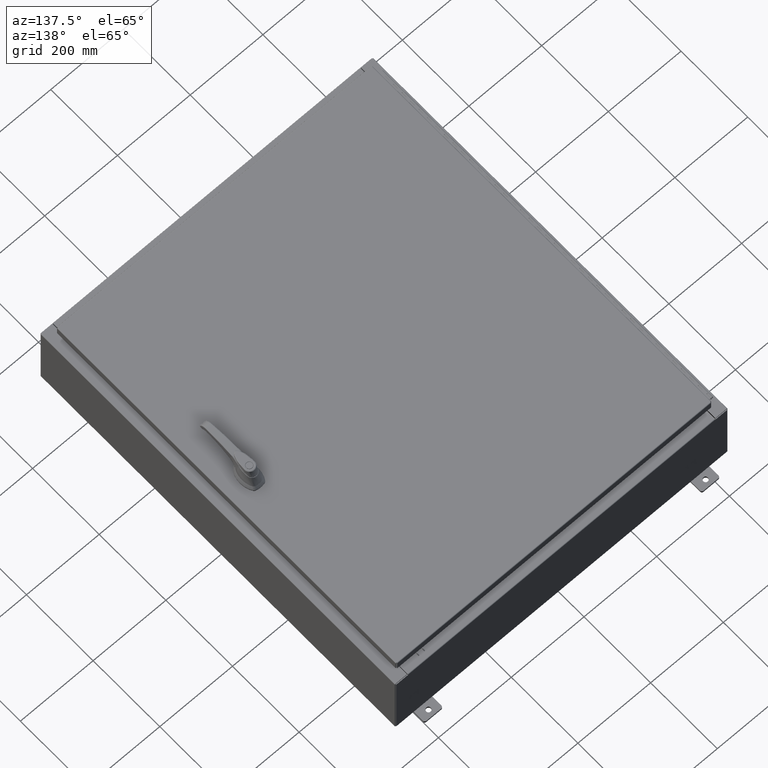
[diagram: clean part render]
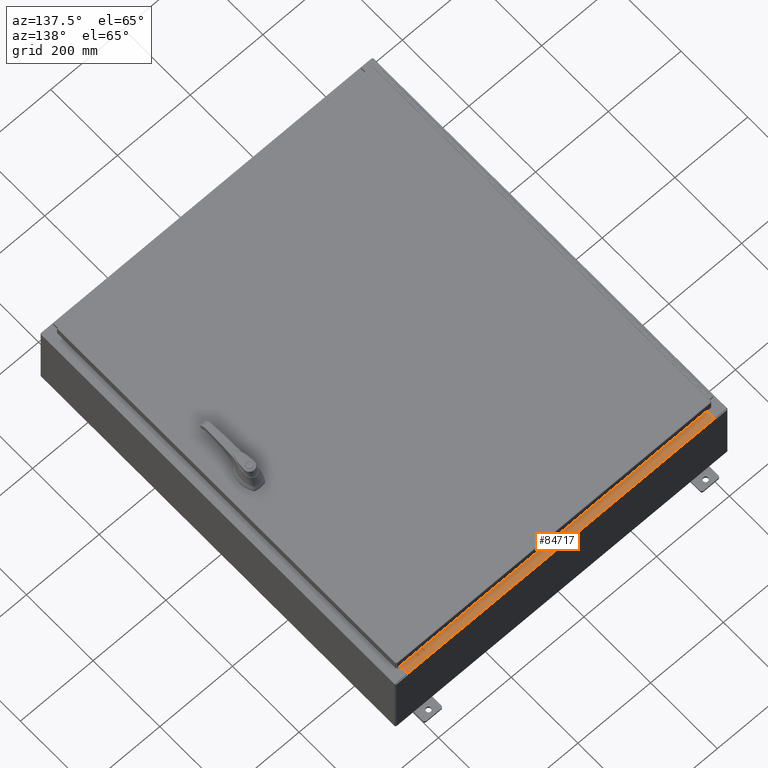
[diagram: same view with one face highlighted and labeled with its STEP entity id]
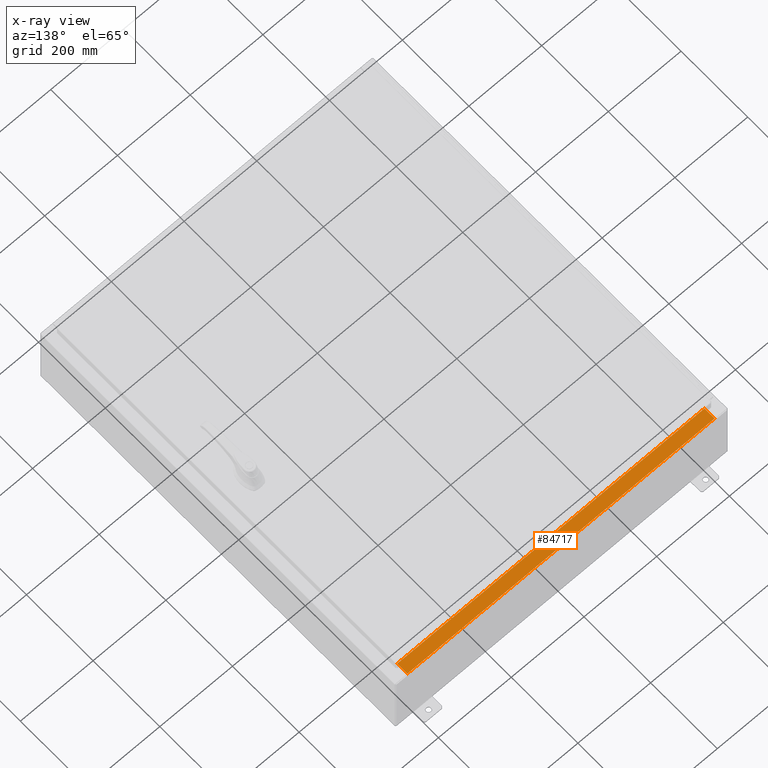
[diagram: x-ray of the same camera — body ghosted, the highlighted face saturated]
A machine part, auxiliary view. The second image highlights one B-rep face of the part: STEP entity #84717.
The next image is the same camera in x-ray: the body ghosted, the highlighted face saturated — about 0% of this face is hidden behind the body in this view.
In plain terms, the highlighted planar face has unit normal (0, 0, 1).
Its self-contained STEP definition (entity closure, byte-faithful):
#1981 = VERTEX_POINT ( 'NONE', #119838 ) ;
#6351 = ORIENTED_EDGE ( 'NONE', *, *, #32666, .T. ) ;
#8736 = LINE ( 'NONE', #27125, #58251 ) ;
#18900 = DIRECTION ( 'NONE',  ( 0.0000000000000000000, 3.566381192773190000E-015, 1.000000000000000000 ) ) ;
#18934 = DIRECTION ( 'NONE',  ( -1.000000000000000000, 3.284023746380717400E-017, -1.171208052571274300E-031 ) ) ;
#19628 = VERTEX_POINT ( 'NONE', #26980 ) ;
#22204 = CARTESIAN_POINT ( 'NONE',  ( 16.63720000000000400, -1.287299999999999900, 4.000000000000004400 ) ) ;
#22216 = CARTESIAN_POINT ( 'NONE',  ( 16.63720000000000700, -1.287299999999999900, 4.000000000000004400 ) ) ;
#26980 = CARTESIAN_POINT ( 'NONE',  ( 16.63720000000000700, -0.08769999999999937600, 4.000000000000000900 ) ) ;
#27125 = CARTESIAN_POINT ( 'NONE',  ( -16.63719999999999600, -0.07469999999999973900, 4.000000000000000900 ) ) ;
#27358 = EDGE_CURVE ( 'NONE', #64976, #1981, #8736, .T. ) ;
#31224 = ORIENTED_EDGE ( 'NONE', *, *, #94271, .F. ) ;
#31755 = DIRECTION ( 'NONE',  ( -1.000000000000000000, 0.0000000000000000000, 0.0000000000000000000 ) ) ;
#31948 = VECTOR ( 'NONE', #95549, 39.37007874015748100 ) ;
#32666 = EDGE_CURVE ( 'NONE', #19628, #1981, #63545, .T. ) ;
#35320 = ORIENTED_EDGE ( 'NONE', *, *, #27358, .F. ) ;
#37029 = DIRECTION ( 'NONE',  ( -0.0000000000000000000, 1.000000000000000000, -3.566381192773190000E-015 ) ) ;
#37651 = VECTOR ( 'NONE', #31755, 39.37007874015748100 ) ;
#44814 = VERTEX_POINT ( 'NONE', #22204 ) ;
#46023 = AXIS2_PLACEMENT_3D ( 'NONE', #98159, #18900, #58723 ) ;
#58251 = VECTOR ( 'NONE', #37029, 39.37007874015748100 ) ;
#58723 = DIRECTION ( 'NONE',  ( 0.0000000000000000000, -1.000000000000000000, 3.566381192773190000E-015 ) ) ;
#61479 = FACE_OUTER_BOUND ( 'NONE', #71434, .T. ) ;
#63545 = LINE ( 'NONE', #98191, #114991 ) ;
#63770 = CARTESIAN_POINT ( 'NONE',  ( -16.63719999999999600, -1.287299999999999200, 4.000000000000004400 ) ) ;
#64976 = VERTEX_POINT ( 'NONE', #63770 ) ;
#67066 = LINE ( 'NONE', #22216, #37651 ) ;
#71434 = EDGE_LOOP ( 'NONE', ( #35320, #31224, #117419, #6351 ) ) ;
#74456 = EDGE_CURVE ( 'NONE', #19628, #44814, #90863, .T. ) ;
#80692 = PLANE ( 'NONE',  #46023 ) ;
#84717 = ADVANCED_FACE ( 'NONE', ( #61479 ), #80692, .T. ) ;
#85530 = CARTESIAN_POINT ( 'NONE',  ( 16.63720000000000400, -1.300299999999999800, 4.000000000000004400 ) ) ;
#90863 = LINE ( 'NONE', #85530, #31948 ) ;
#94271 = EDGE_CURVE ( 'NONE', #44814, #64976, #67066, .T. ) ;
#95549 = DIRECTION ( 'NONE',  ( -0.0000000000000000000, -1.000000000000000000, 3.566381192773190000E-015 ) ) ;
#98159 = CARTESIAN_POINT ( 'NONE',  ( 0.0000000000000000000, 1.425992975200418500E-014, 4.000000000000000900 ) ) ;
#98191 = CARTESIAN_POINT ( 'NONE',  ( -2.880088825576348200E-018, -0.08769999999999972300, 4.000000000000000900 ) ) ;
#114991 = VECTOR ( 'NONE', #18934, 39.37007874015748100 ) ;
#117419 = ORIENTED_EDGE ( 'NONE', *, *, #74456, .F. ) ;
#119838 = CARTESIAN_POINT ( 'NONE',  ( -16.63719999999999600, -0.08769999999999972300, 4.000000000000000900 ) ) ;